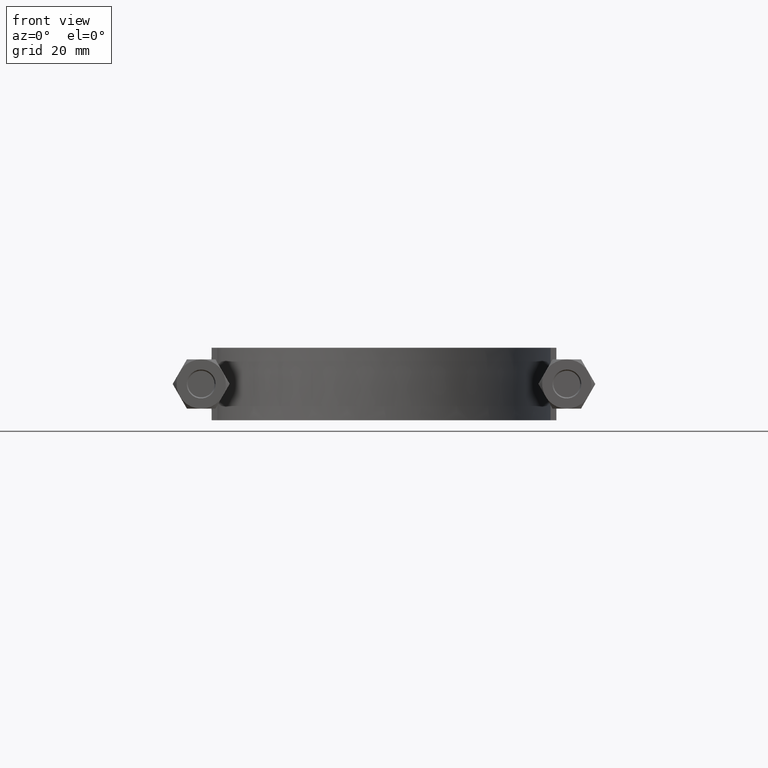
[diagram: clean part render]
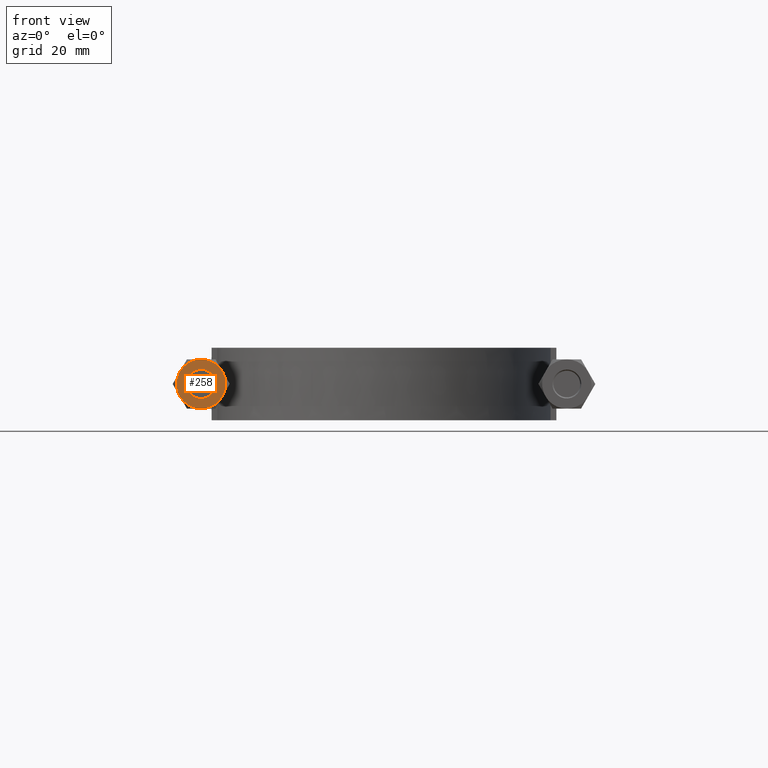
[diagram: same view with one face highlighted and labeled with its STEP entity id]
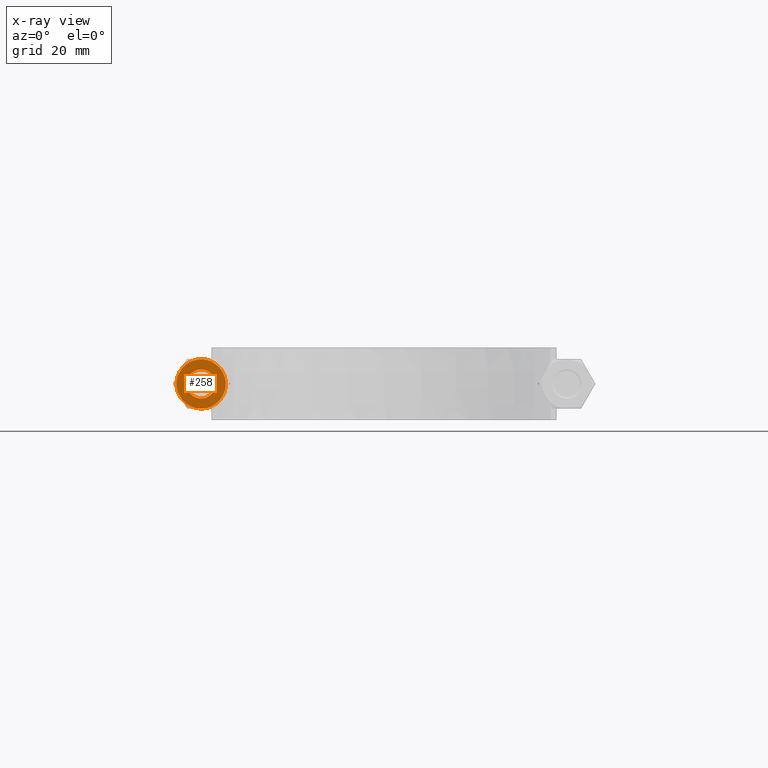
[diagram: x-ray of the same camera — body ghosted, the highlighted face saturated]
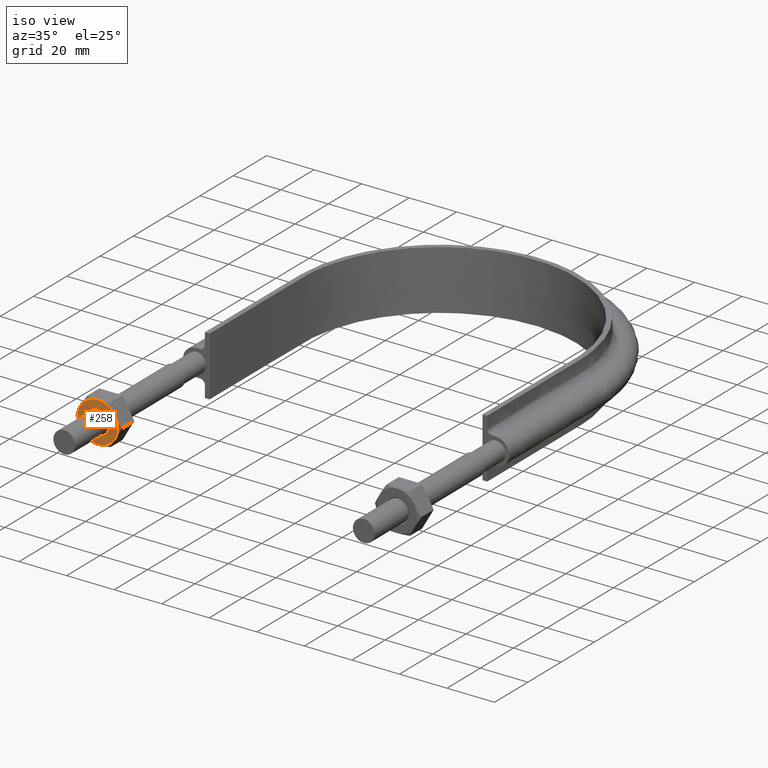
[diagram: same view with one face highlighted and labeled with its STEP entity id]
A machine part, front view. The second image highlights one B-rep face of the part: STEP entity #258.
The next image is the same camera in x-ray: the body ghosted, the highlighted face saturated — about 0% of this face is hidden behind the body in this view.
A second angle (iso view) of the same face is appended — the face is thin or edge-on in the first view.
In plain terms, the highlighted planar face has unit normal (0, 1, 0).
Its self-contained STEP definition (entity closure, byte-faithful):
#258 = ADVANCED_FACE( '', ( #382, #383 ), #384, .F. );
#382 = FACE_OUTER_BOUND( '', #1204, .T. );
#383 = FACE_BOUND( '', #1205, .T. );
#384 = PLANE( '', #1206 );
#1204 = EDGE_LOOP( '', ( #1550, #1551, #1552, #1553, #1554, #1555 ) );
#1205 = EDGE_LOOP( '', ( #1556 ) );
#1206 = AXIS2_PLACEMENT_3D( '', #1557, #1558, #1559 );
#1550 = ORIENTED_EDGE( '', *, *, #1895, .F. );
#1551 = ORIENTED_EDGE( '', *, *, #1901, .F. );
#1552 = ORIENTED_EDGE( '', *, *, #1886, .F. );
#1553 = ORIENTED_EDGE( '', *, *, #1892, .F. );
#1554 = ORIENTED_EDGE( '', *, *, #1865, .F. );
#1555 = ORIENTED_EDGE( '', *, *, #1902, .F. );
#1556 = ORIENTED_EDGE( '', *, *, #1903, .T. );
#1557 = CARTESIAN_POINT( '', ( -63.0000000000000, 20.0000000000000, -2.44921270764476E-016 ) );
#1558 = DIRECTION( '', ( 1.49966072182214E-032, 1.00000000000000, 6.12303176911190E-017 ) );
#1559 = DIRECTION( '', ( 1.00000000000000, 0.000000000000000, -2.44921270764475E-016 ) );
#1865 = EDGE_CURVE( '', #2044, #2046, #2047, .T. );
#1886 = EDGE_CURVE( '', #2080, #2085, #2086, .T. );
#1892 = EDGE_CURVE( '', #2046, #2080, #2095, .T. );
#1895 = EDGE_CURVE( '', #2099, #2100, #2101, .T. );
#1901 = EDGE_CURVE( '', #2085, #2099, #2109, .T. );
#1902 = EDGE_CURVE( '', #2100, #2044, #2110, .T. );
#1903 = EDGE_CURVE( '', #2111, #2111, #2112, .T. );
#2044 = VERTEX_POINT( '', #2530 );
#2046 = VERTEX_POINT( '', #2537 );
#2047 = CIRCLE( '', #2538, 8.50000000000000 );
#2080 = VERTEX_POINT( '', #2584 );
#2085 = VERTEX_POINT( '', #2600 );
#2086 = CIRCLE( '', #2601, 8.50000000000000 );
#2095 = CIRCLE( '', #2617, 8.50000000000000 );
#2099 = VERTEX_POINT( '', #2626 );
#2100 = VERTEX_POINT( '', #2627 );
#2101 = CIRCLE( '', #2628, 8.50000000000000 );
#2109 = CIRCLE( '', #2648, 8.50000000000000 );
#2110 = CIRCLE( '', #2649, 8.50000000000000 );
#2111 = VERTEX_POINT( '', #2650 );
#2112 = CIRCLE( '', #2651, 5.00000000000000 );
#2530 = CARTESIAN_POINT( '', ( -55.6387840678323, 20.0000000000000, 4.25000000000001 ) );
#2537 = CARTESIAN_POINT( '', ( -55.6387840678323, 20.0000000000000, -4.25000000000000 ) );
#2538 = AXIS2_PLACEMENT_3D( '', #2924, #2925, #2926 );
#2584 = CARTESIAN_POINT( '', ( -63.0000000000000, 20.0000000000000, -8.50000000000000 ) );
#2600 = CARTESIAN_POINT( '', ( -70.3612159321677, 20.0000000000000, -4.25000000000000 ) );
#2601 = AXIS2_PLACEMENT_3D( '', #2960, #2961, #2962 );
#2617 = AXIS2_PLACEMENT_3D( '', #2971, #2972, #2973 );
#2626 = CARTESIAN_POINT( '', ( -70.3612159321677, 20.0000000000000, 4.25000000000003 ) );
#2627 = CARTESIAN_POINT( '', ( -63.0000000000000, 20.0000000000000, 8.50000000000000 ) );
#2628 = AXIS2_PLACEMENT_3D( '', #2977, #2978, #2979 );
#2648 = AXIS2_PLACEMENT_3D( '', #2985, #2986, #2987 );
#2649 = AXIS2_PLACEMENT_3D( '', #2988, #2989, #2990 );
#2650 = CARTESIAN_POINT( '', ( -63.0000000000000, 20.0000000000000, 5.00000000000000 ) );
#2651 = AXIS2_PLACEMENT_3D( '', #2991, #2992, #2993 );
#2924 = CARTESIAN_POINT( '', ( -63.0000000000000, 20.0000000000000, -2.44921270764477E-016 ) );
#2925 = DIRECTION( '', ( 1.49966072182214E-032, 1.00000000000000, 6.12303176911190E-017 ) );
#2926 = DIRECTION( '', ( 0.000000000000000, -6.12303176911190E-017, 1.00000000000000 ) );
#2960 = CARTESIAN_POINT( '', ( -63.0000000000000, 20.0000000000000, -2.44921270764477E-016 ) );
#2961 = DIRECTION( '', ( 1.49966072182214E-032, 1.00000000000000, 6.12303176911190E-017 ) );
#2962 = DIRECTION( '', ( 0.000000000000000, -6.12303176911190E-017, 1.00000000000000 ) );
#2971 = CARTESIAN_POINT( '', ( -63.0000000000000, 20.0000000000000, -2.44921270764477E-016 ) );
#2972 = DIRECTION( '', ( 1.49966072182214E-032, 1.00000000000000, 6.12303176911190E-017 ) );
#2973 = DIRECTION( '', ( 0.000000000000000, -6.12303176911190E-017, 1.00000000000000 ) );
#2977 = CARTESIAN_POINT( '', ( -63.0000000000000, 20.0000000000000, -2.44921270764477E-016 ) );
#2978 = DIRECTION( '', ( 1.49966072182214E-032, 1.00000000000000, 6.12303176911190E-017 ) );
#2979 = DIRECTION( '', ( 0.000000000000000, -6.12303176911190E-017, 1.00000000000000 ) );
#2985 = CARTESIAN_POINT( '', ( -63.0000000000000, 20.0000000000000, -2.44921270764477E-016 ) );
#2986 = DIRECTION( '', ( 1.49966072182214E-032, 1.00000000000000, 6.12303176911190E-017 ) );
#2987 = DIRECTION( '', ( 0.000000000000000, -6.12303176911190E-017, 1.00000000000000 ) );
#2988 = CARTESIAN_POINT( '', ( -63.0000000000000, 20.0000000000000, -2.44921270764477E-016 ) );
#2989 = DIRECTION( '', ( 1.49966072182214E-032, 1.00000000000000, 6.12303176911190E-017 ) );
#2990 = DIRECTION( '', ( 0.000000000000000, -6.12303176911190E-017, 1.00000000000000 ) );
#2991 = CARTESIAN_POINT( '', ( -63.0000000000000, 20.0000000000000, -2.44921270764476E-016 ) );
#2992 = DIRECTION( '', ( 1.49966072182214E-032, 1.00000000000000, 6.12303176911190E-017 ) );
#2993 = DIRECTION( '', ( 0.000000000000000, -6.12303176911190E-017, 1.00000000000000 ) );